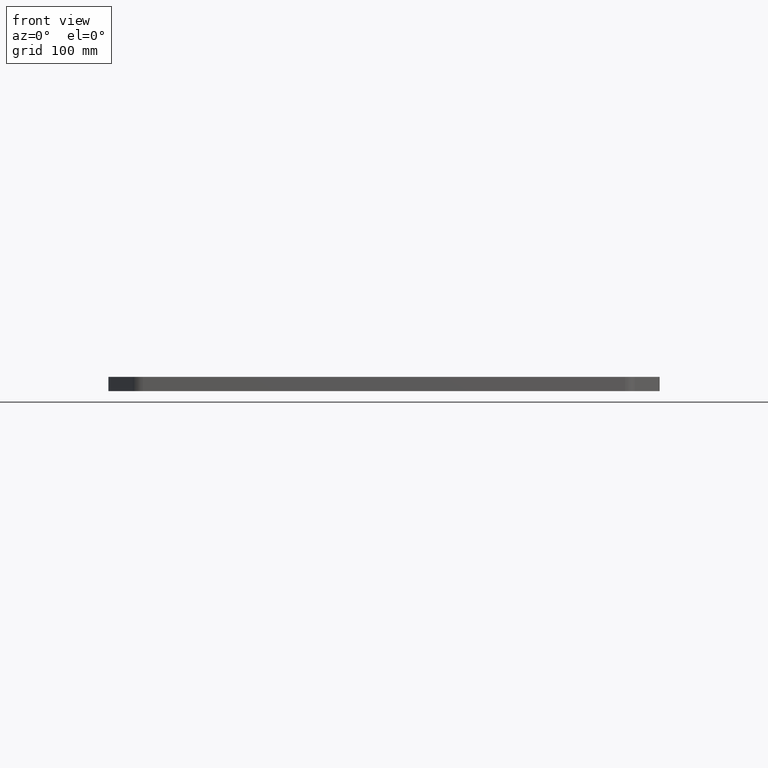
[diagram: clean part render]
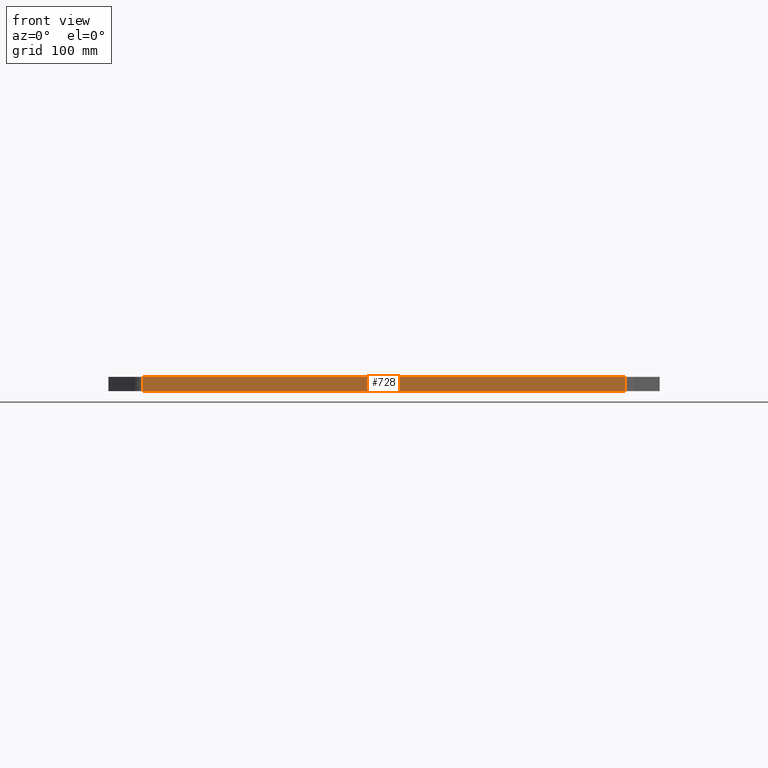
[diagram: same view with one face highlighted and labeled with its STEP entity id]
A machine part, front view. The second image highlights one B-rep face of the part: STEP entity #728.
In plain terms, the highlighted planar face has unit normal (-0, 1, 0).
Its self-contained STEP definition (entity closure, byte-faithful):
#21 = ORIENTED_EDGE ( 'NONE', *, *, #86, .T. ) ;
#41 = AXIS2_PLACEMENT_3D ( 'NONE', #252, #355, #795 ) ;
#86 = EDGE_CURVE ( 'NONE', #913, #549, #966, .T. ) ;
#164 = EDGE_CURVE ( 'NONE', #1003, #913, #799, .T. ) ;
#177 = FACE_OUTER_BOUND ( 'NONE', #521, .T. ) ;
#194 = CARTESIAN_POINT ( 'NONE',  ( -209.0000000000000300, 3.833983260577668600E-014, 0.0000000000000000000 ) ) ;
#218 = CARTESIAN_POINT ( 'NONE',  ( 203.2264973081040000, 8.886827353357504600E-014, 0.0000000000000000000 ) ) ;
#245 = EDGE_CURVE ( 'NONE', #710, #549, #348, .T. ) ;
#248 = VECTOR ( 'NONE', #961, 1000.000000000000000 ) ;
#252 = CARTESIAN_POINT ( 'NONE',  ( -209.0000000000000300, 3.833983260577668600E-014, 12.00000000000000000 ) ) ;
#256 = LINE ( 'NONE', #974, #248 ) ;
#295 = CARTESIAN_POINT ( 'NONE',  ( -203.2264973081040000, 3.904751658926383700E-014, 0.0000000000000000000 ) ) ;
#331 = ORIENTED_EDGE ( 'NONE', *, *, #245, .F. ) ;
#337 = VECTOR ( 'NONE', #761, 1000.000000000000000 ) ;
#346 = ORIENTED_EDGE ( 'NONE', *, *, #164, .T. ) ;
#348 = LINE ( 'NONE', #889, #337 ) ;
#355 = DIRECTION ( 'NONE',  ( -1.225744615102523800E-016, 1.000000000000000000, 0.0000000000000000000 ) ) ;
#361 = PLANE ( 'NONE',  #41 ) ;
#389 = CARTESIAN_POINT ( 'NONE',  ( -203.2264973081040000, 3.904751658926383700E-014, 12.00000000000000000 ) ) ;
#407 = VECTOR ( 'NONE', #832, 1000.000000000000000 ) ;
#502 = EDGE_CURVE ( 'NONE', #710, #1003, #256, .T. ) ;
#521 = EDGE_LOOP ( 'NONE', ( #331, #589, #346, #21 ) ) ;
#549 = VERTEX_POINT ( 'NONE', #905 ) ;
#589 = ORIENTED_EDGE ( 'NONE', *, *, #502, .T. ) ;
#618 = CARTESIAN_POINT ( 'NONE',  ( 203.2264973081040000, 8.886827353357504600E-014, 12.00000000000000000 ) ) ;
#710 = VERTEX_POINT ( 'NONE', #389 ) ;
#728 = ADVANCED_FACE ( 'NONE', ( #177 ), #361, .F. ) ;
#761 = DIRECTION ( 'NONE',  ( 1.000000000000000000, 1.225744615102523800E-016, 0.0000000000000000000 ) ) ;
#795 = DIRECTION ( 'NONE',  ( -1.000000000000000000, -1.225744615102523800E-016, 0.0000000000000000000 ) ) ;
#799 = LINE ( 'NONE', #194, #407 ) ;
#800 = VECTOR ( 'NONE', #942, 1000.000000000000000 ) ;
#832 = DIRECTION ( 'NONE',  ( 1.000000000000000000, 1.225744615102523800E-016, 0.0000000000000000000 ) ) ;
#889 = CARTESIAN_POINT ( 'NONE',  ( -209.0000000000000300, 3.833983260577668600E-014, 12.00000000000000000 ) ) ;
#905 = CARTESIAN_POINT ( 'NONE',  ( 203.2264973081040000, 8.886827353357504600E-014, 12.00000000000000000 ) ) ;
#913 = VERTEX_POINT ( 'NONE', #218 ) ;
#942 = DIRECTION ( 'NONE',  ( -0.0000000000000000000, -0.0000000000000000000, 1.000000000000000000 ) ) ;
#961 = DIRECTION ( 'NONE',  ( 0.0000000000000000000, 0.0000000000000000000, -1.000000000000000000 ) ) ;
#966 = LINE ( 'NONE', #618, #800 ) ;
#974 = CARTESIAN_POINT ( 'NONE',  ( -203.2264973081040000, 3.904751658926383700E-014, 12.00000000000000000 ) ) ;
#1003 = VERTEX_POINT ( 'NONE', #295 ) ;